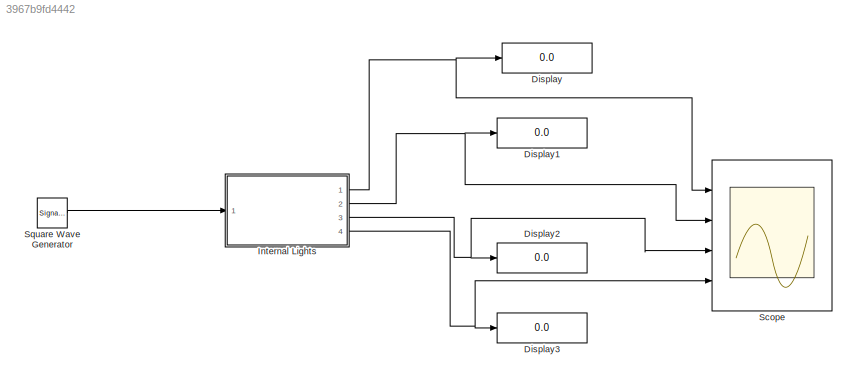
MODEL slx_3967b9fd4442
KIND model
CONFIG AbsTol = auto
CONFIG EnableMultiTasking = off
CONFIG FixedStep = 0.1
CONFIG MaxStep = auto
CONFIG MinStep = auto
CONFIG RelTol = 1e-3
CONFIG SampleTimeConstraint = Unconstrained
CONFIG Solver = FixedStepAuto
CONFIG SolverName = FixedStepAuto
CONFIG StartTime = 0.0
CONFIG StopTime = 10
BLOCK [Display] Display
  Decimation = 1
  Ports = [1]
BLOCK [Display] Display1
  Decimation = 1
  Ports = [1]
BLOCK [Display] Display2
  Decimation = 1
  Ports = [1]
BLOCK [Display] Display3
  Decimation = 1
  Ports = [1]
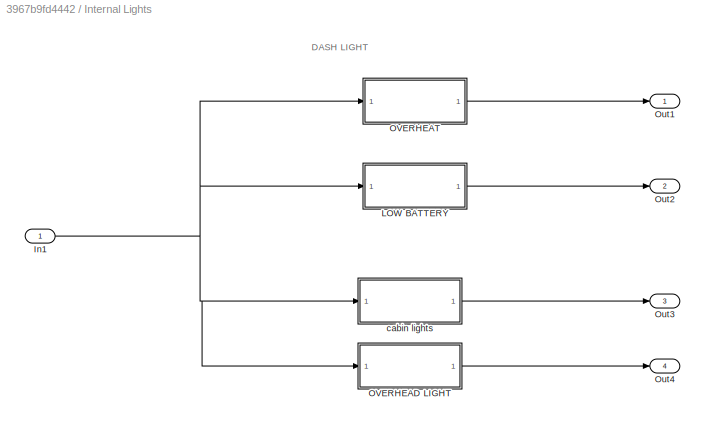
BLOCK [SubSystem] Internal Lights
  Ports = [1, 4]
  RequestExecContextInheritance = off
BLOCK [Inport] Internal Lights/In1
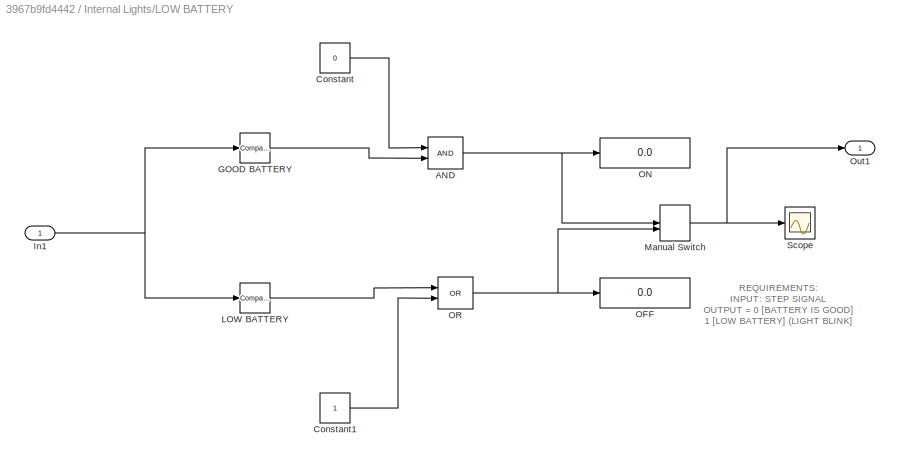
BLOCK [SubSystem] Internal Lights/LOW BATTERY
  Ports = [1, 1]
  RequestExecContextInheritance = off
BLOCK [Logic] Internal Lights/LOW BATTERY/AND
  AllPortsSameDT = off
  IconShape = distinctive
  OutDataTypeStr = boolean
  Ports = [2, 1]
BLOCK [Constant] Internal Lights/LOW BATTERY/Constant
  Value = 0
BLOCK [Constant] Internal Lights/LOW BATTERY/Constant1
BLOCK [Reference] Internal Lights/LOW BATTERY/GOOD BATTERY  REF=simulink/Logic and Bit
Operations/Compare
To Constant
  Ports = [1, 1]
  SourceBlock = simulink/Logic and Bit\nOperations/Compare\nTo Constant
  SourceProductBaseCode = SL
  SourceType = Compare To Constant
BLOCK [Inport] Internal Lights/LOW BATTERY/In1
BLOCK [Reference] Internal Lights/LOW BATTERY/LOW BATTERY  REF=simulink/Logic and Bit
Operations/Compare
To Constant
  Ports = [1, 1]
  SourceBlock = simulink/Logic and Bit\nOperations/Compare\nTo Constant
  SourceProductBaseCode = SL
  SourceType = Compare To Constant
BLOCK [ManualSwitch] Internal Lights/LOW BATTERY/Manual Switch
BLOCK [Display] Internal Lights/LOW BATTERY/OFF
  Decimation = 1
  Ports = [1]
BLOCK [Display] Internal Lights/LOW BATTERY/ON
  Decimation = 1
  Ports = [1]
BLOCK [Logic] Internal Lights/LOW BATTERY/OR
  AllPortsSameDT = off
  IconShape = distinctive
  Operator = OR
  OutDataTypeStr = boolean
  Ports = [2, 1]
BLOCK [Outport] Internal Lights/LOW BATTERY/Out1
BLOCK [Scope] Internal Lights/LOW BATTERY/Scope
  Floating = off
  NumInputPorts = 1
  Ports = [1]
  ScopeSpecificationString = Simulink.scopes.TimeScopeBlockCfg('CurrentConfiguration', extmgr.ConfigurationSet(extmgr.Configuration('Core','General UI',true),extmgr.Configuration('Core','Source UI',true),extmgr.Configuration('Sources','WiredSimulink',true,'DataLoggingVariableName','ScopeData2'),extmgr.Configuration('Visuals','Time Domain',true,'SerializedDisplays',{struct('MinYLimReal','0.9','MaxYLimReal','1.1','YLabelReal','...<+1338ch>
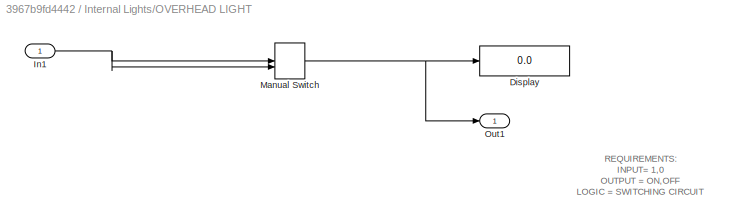
BLOCK [SubSystem] Internal Lights/OVERHEAD LIGHT
  Ports = [1, 1]
  RequestExecContextInheritance = off
BLOCK [Display] Internal Lights/OVERHEAD LIGHT/Display
  Decimation = 1
  Ports = [1]
BLOCK [Inport] Internal Lights/OVERHEAD LIGHT/In1
BLOCK [ManualSwitch] Internal Lights/OVERHEAD LIGHT/Manual Switch
  CurrentSetting = 0
BLOCK [Outport] Internal Lights/OVERHEAD LIGHT/Out1
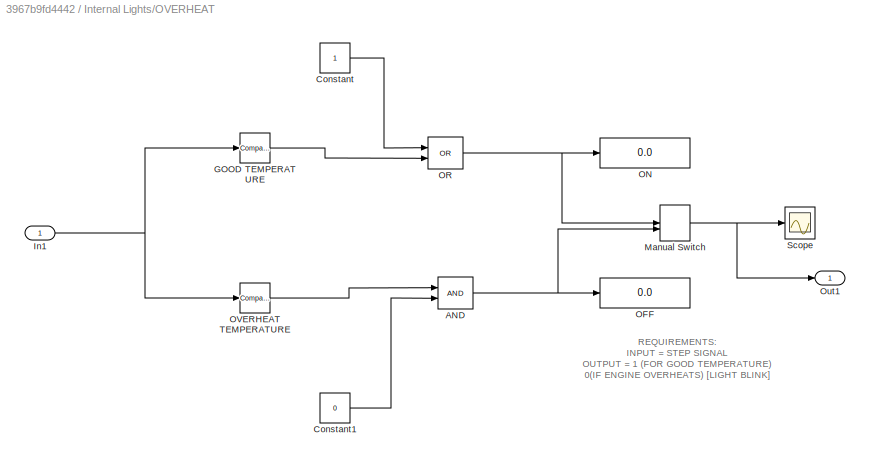
BLOCK [SubSystem] Internal Lights/OVERHEAT
  Ports = [1, 1]
  RequestExecContextInheritance = off
BLOCK [Logic] Internal Lights/OVERHEAT/AND
  AllPortsSameDT = off
  IconShape = distinctive
  OutDataTypeStr = boolean
  Ports = [2, 1]
BLOCK [Constant] Internal Lights/OVERHEAT/Constant
BLOCK [Constant] Internal Lights/OVERHEAT/Constant1
  Value = 0
BLOCK [Reference] Internal Lights/OVERHEAT/GOOD TEMPERATURE  REF=simulink/Logic and Bit
Operations/Compare
To Constant
  Ports = [1, 1]
  SourceBlock = simulink/Logic and Bit\nOperations/Compare\nTo Constant
  SourceProductBaseCode = SL
  SourceType = Compare To Constant
BLOCK [Inport] Internal Lights/OVERHEAT/In1
BLOCK [ManualSwitch] Internal Lights/OVERHEAT/Manual Switch
BLOCK [Display] Internal Lights/OVERHEAT/OFF
  Decimation = 1
  Ports = [1]
BLOCK [Display] Internal Lights/OVERHEAT/ON
  Decimation = 1
  Ports = [1]
BLOCK [Logic] Internal Lights/OVERHEAT/OR
  AllPortsSameDT = off
  IconShape = distinctive
  Operator = OR
  OutDataTypeStr = boolean
  Ports = [2, 1]
BLOCK [Reference] Internal Lights/OVERHEAT/OVERHEAT TEMPERATURE  REF=simulink/Logic and Bit
Operations/Compare
To Constant
  Ports = [1, 1]
  SourceBlock = simulink/Logic and Bit\nOperations/Compare\nTo Constant
  SourceProductBaseCode = SL
  SourceType = Compare To Constant
BLOCK [Outport] Internal Lights/OVERHEAT/Out1
BLOCK [Scope] Internal Lights/OVERHEAT/Scope
  Floating = off
  NumInputPorts = 1
  Ports = [1]
  ScopeSpecificationString = Simulink.scopes.TimeScopeBlockCfg('CurrentConfiguration', extmgr.ConfigurationSet(extmgr.Configuration('Core','General UI',true),extmgr.Configuration('Core','Source UI',true),extmgr.Configuration('Sources','WiredSimulink',true,'DataLoggingVariableName','ScopeData1'),extmgr.Configuration('Visuals','Time Domain',true,'SerializedDisplays',{struct('MinYLimReal','0.9','MaxYLimReal','1.1','YLabelReal','...<+1338ch>
BLOCK [Outport] Internal Lights/Out1
BLOCK [Outport] Internal Lights/Out2
  Port = 2
BLOCK [Outport] Internal Lights/Out3
  Port = 3
BLOCK [Outport] Internal Lights/Out4
  Port = 4
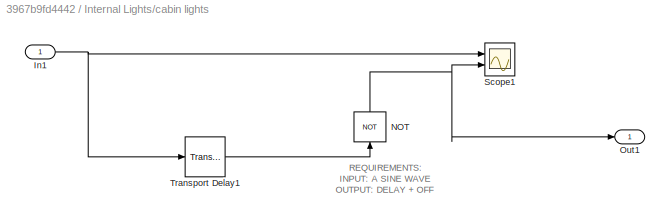
BLOCK [SubSystem] Internal Lights/cabin lights
  Ports = [1, 1]
  RequestExecContextInheritance = off
BLOCK [Inport] Internal Lights/cabin lights/In1
BLOCK [Logic] Internal Lights/cabin lights/NOT
  AllPortsSameDT = off
  Operator = NOT
  OutDataTypeStr = boolean
  Ports = [1, 1]
BLOCK [Outport] Internal Lights/cabin lights/Out1
BLOCK [Scope] Internal Lights/cabin lights/Scope1
  Floating = off
  NumInputPorts = 2
  Ports = [2]
  ScopeSpecificationString = Simulink.scopes.TimeScopeBlockCfg('CurrentConfiguration', extmgr.ConfigurationSet(extmgr.Configuration('Core','General UI',true),extmgr.Configuration('Core','Source UI',true),extmgr.Configuration('Sources','WiredSimulink',true,'DataLoggingVariableName','ScopeData4'),extmgr.Configuration('Visuals','Time Domain',true,'SerializedDisplays',{struct('MinYLimReal','-1.25','MaxYLimReal','1.25','YLabelReal...<+1421ch>
BLOCK [TransportDelay] Internal Lights/cabin lights/Transport Delay1
  DelayTime = 3
  Ports = [1, 1]
BLOCK [Scope] Scope
  Floating = off
  NumInputPorts = 4
  Ports = [4]
  ScopeSpecificationString = Simulink.scopes.TimeScopeBlockCfg('CurrentConfiguration', extmgr.ConfigurationSet(extmgr.Configuration('Core','General UI',true),extmgr.Configuration('Core','Source UI',true),extmgr.Configuration('Sources','WiredSimulink',true,'DataLoggingVariableName','ScopeData1'),extmgr.Configuration('Visuals','Time Domain',true,'SerializedDisplays',{struct('MinYLimReal','-1.25','MaxYLimReal','1.25','YLabelReal...<+1510ch>
BLOCK [SignalGenerator] Square Wave Generator
  Ports = [0, 1]
  Units = rad/sec
  WaveForm = square
ANNOTATION Internal Lights: DASH LIGHT
ANNOTATION Internal Lights/LOW BATTERY: REQUIREMENTS: INPUT: STEP SIGNAL OUTPUT = 0 [BATTERY IS GOOD] 1 [LOW BATTERY] (LIGHT BLINK]
ANNOTATION Internal Lights/OVERHEAD LIGHT: REQUIREMENTS: INPUT= 1,0 OUTPUT = ON,OFF LOGIC = SWITCHING CIRCUIT
ANNOTATION Internal Lights/OVERHEAT: REQUIREMENTS: INPUT = STEP SIGNAL OUTPUT = 1 (FOR GOOD TEMPERATURE) 0(IF ENGINE OVERHEATS) [LIGHT BLINK]
ANNOTATION Internal Lights/cabin lights: REQUIREMENTS: INPUT: A SINE WAVE OUTPUT: DELAY + OFF
NET Internal Lights/In1:1 -> Internal Lights/LOW BATTERY:1, Internal Lights/OVERHEAD LIGHT:1, Internal Lights/OVERHEAT:1, Internal Lights/cabin lights:1
NET Internal Lights/LOW BATTERY/AND:1 -> Internal Lights/LOW BATTERY/Manual Switch:1, Internal Lights/LOW BATTERY/ON:1
LINE Internal Lights/LOW BATTERY/Constant1:1 -> Internal Lights/LOW BATTERY/OR:2
LINE Internal Lights/LOW BATTERY/Constant:1 -> Internal Lights/LOW BATTERY/AND:1
LINE Internal Lights/LOW BATTERY/GOOD BATTERY:1 -> Internal Lights/LOW BATTERY/AND:2
NET Internal Lights/LOW BATTERY/In1:1 -> Internal Lights/LOW BATTERY/GOOD BATTERY:1, Internal Lights/LOW BATTERY/LOW BATTERY:1
LINE Internal Lights/LOW BATTERY/LOW BATTERY:1 -> Internal Lights/LOW BATTERY/OR:1
NET Internal Lights/LOW BATTERY/Manual Switch:1 -> Internal Lights/LOW BATTERY/Out1:1, Internal Lights/LOW BATTERY/Scope:1
NET Internal Lights/LOW BATTERY/OR:1 -> Internal Lights/LOW BATTERY/Manual Switch:2, Internal Lights/LOW BATTERY/OFF:1
LINE Internal Lights/LOW BATTERY:1 -> Internal Lights/Out2:1
NET Internal Lights/OVERHEAD LIGHT/In1:1 -> Internal Lights/OVERHEAD LIGHT/Manual Switch:1, Internal Lights/OVERHEAD LIGHT/Manual Switch:2
NET Internal Lights/OVERHEAD LIGHT/Manual Switch:1 -> Internal Lights/OVERHEAD LIGHT/Display:1, Internal Lights/OVERHEAD LIGHT/Out1:1
LINE Internal Lights/OVERHEAD LIGHT:1 -> Internal Lights/Out4:1
NET Internal Lights/OVERHEAT/AND:1 -> Internal Lights/OVERHEAT/Manual Switch:2, Internal Lights/OVERHEAT/OFF:1
LINE Internal Lights/OVERHEAT/Constant1:1 -> Internal Lights/OVERHEAT/AND:2
LINE Internal Lights/OVERHEAT/Constant:1 -> Internal Lights/OVERHEAT/OR:1
LINE Internal Lights/OVERHEAT/GOOD TEMPERATURE:1 -> Internal Lights/OVERHEAT/OR:2
NET Internal Lights/OVERHEAT/In1:1 -> Internal Lights/OVERHEAT/GOOD TEMPERATURE:1, Internal Lights/OVERHEAT/OVERHEAT TEMPERATURE:1
NET Internal Lights/OVERHEAT/Manual Switch:1 -> Internal Lights/OVERHEAT/Out1:1, Internal Lights/OVERHEAT/Scope:1
NET Internal Lights/OVERHEAT/OR:1 -> Internal Lights/OVERHEAT/Manual Switch:1, Internal Lights/OVERHEAT/ON:1
LINE Internal Lights/OVERHEAT/OVERHEAT TEMPERATURE:1 -> Internal Lights/OVERHEAT/AND:1
LINE Internal Lights/OVERHEAT:1 -> Internal Lights/Out1:1
NET Internal Lights/cabin lights/In1:1 -> Internal Lights/cabin lights/Scope1:1, Internal Lights/cabin lights/Transport Delay1:1
NET Internal Lights/cabin lights/NOT:1 -> Internal Lights/cabin lights/Out1:1, Internal Lights/cabin lights/Scope1:2
LINE Internal Lights/cabin lights/Transport Delay1:1 -> Internal Lights/cabin lights/NOT:1
LINE Internal Lights/cabin lights:1 -> Internal Lights/Out3:1
NET Internal Lights:1 -> Display:1, Scope:1
NET Internal Lights:2 -> Display1:1, Scope:2
NET Internal Lights:3 -> Display2:1, Scope:3
NET Internal Lights:4 -> Display3:1, Scope:4
LINE Square Wave Generator:1 -> Internal Lights:1
note: NET lines group one-source signal fan-out (src -> all destinations, sorted); 1:1 wires keep LINE
